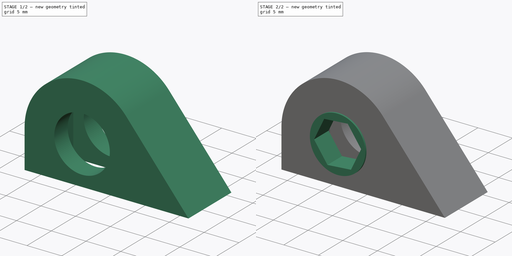
[diagram: build sequence overview — one tinted view per stage of 2, left to right]
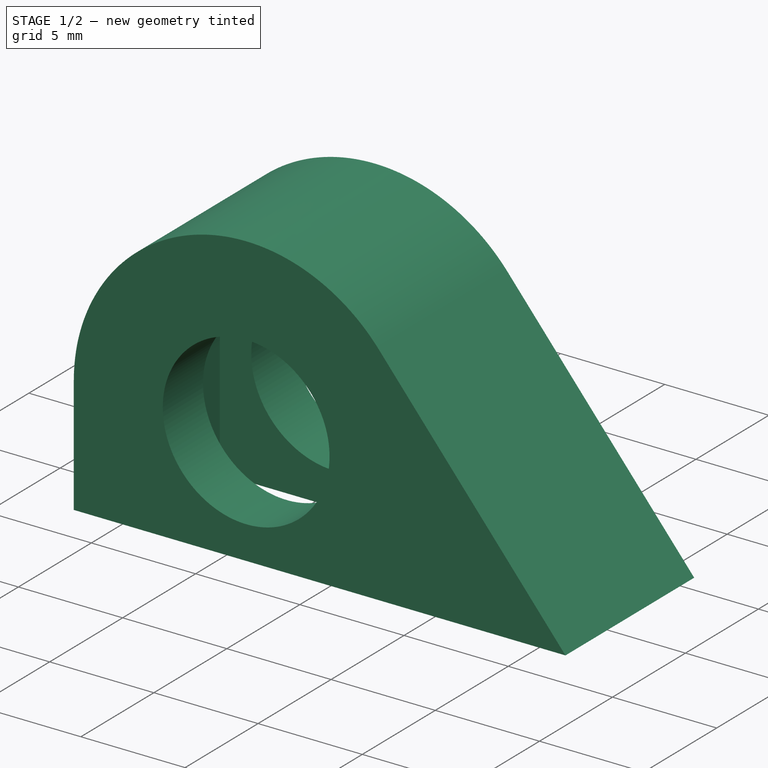
[diagram: stage 1 of 2 — iso view after this stage's code; geometry added in this stage tinted green]
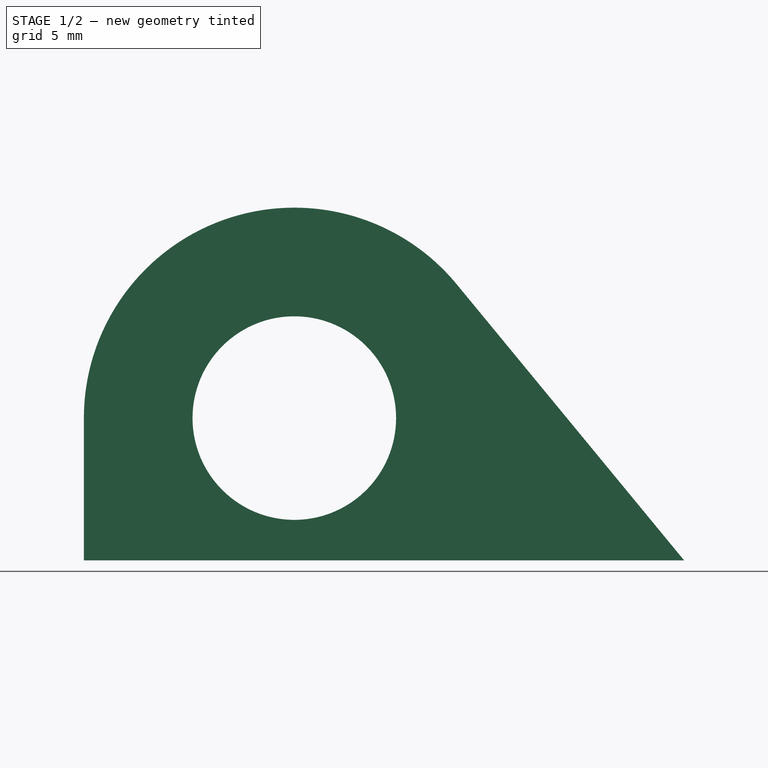
[diagram: stage 1 of 2 — front view after this stage's code; geometry added in this stage tinted green]
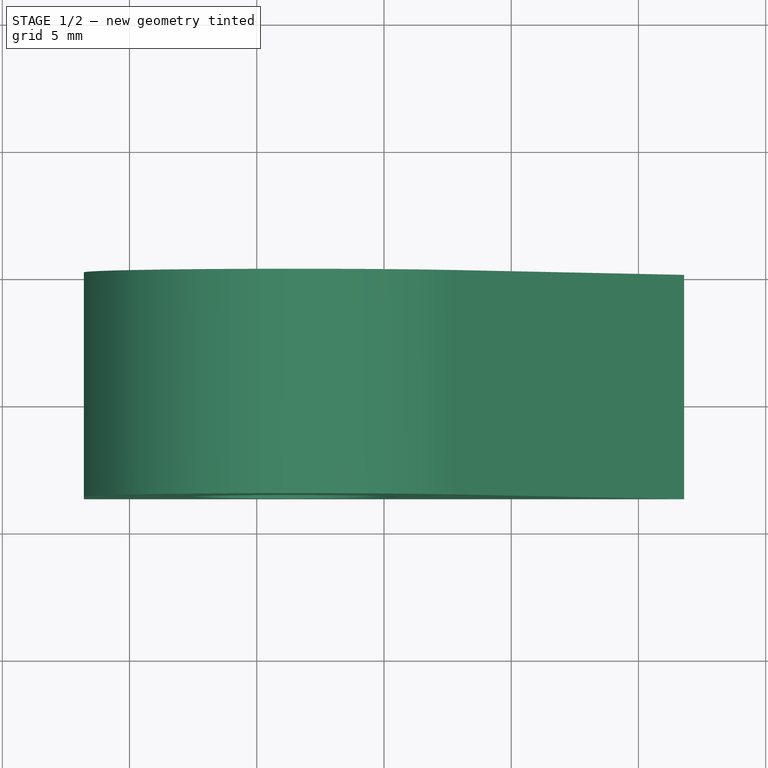
[diagram: stage 1 of 2 — top view after this stage's code; geometry added in this stage tinted green]
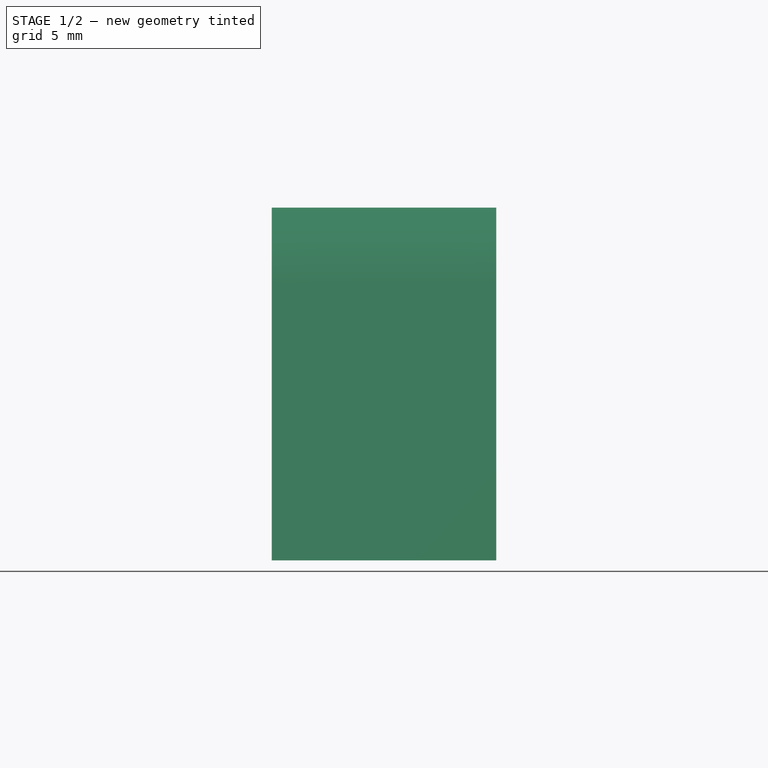
[diagram: stage 1 of 2 — right view after this stage's code; geometry added in this stage tinted green]
FCSTD DOCUMENT  (FreeCAD 0.16R4928 (Git))
Label: SujetaTuercas
License: All rights reserved
LicenseURL: http://en.wikipedia.org/wiki/All_rights_reserved
objects: Sketcher::SketchObject×2, Part::Feature×1, PartDesign::Pocket×1, PartDesign::Pad×1
note: 7 computed .brp shape members not serialized (recipe doc carries the construction recipe); baked Part::Feature solids carry a one-line shape summary decoded from their .brp

FEATURE [Part::Feature] Solid
  shape: bbox 23.59 x 8.82 x 13.86 mm, 3038 faces (baked)
FEATURE [Sketcher::SketchObject] Sketch
  ExternalGeometry = -> [Solid]
  Placement = pos=(0,-23.64,0) rot=(1,0,0;1.5708rad)
  Support = -> Solid [Face249]
  sketch-geometry (2):
    g0: Circle [constr] CenterX=-3.5248 CenterY=5.59035 CenterZ=0 NormalX=0 NormalY=0 NormalZ=1 Radius=1.764
    g1: Circle CenterX=-3.5248 CenterY=5.59035 CenterZ=0 NormalX=0 NormalY=0 NormalZ=1 Radius=4
  constraints (5):
    c: PointOnObject(g-4,g0)
    c: PointOnObject(g-3,g0)
    c: PointOnObject(g-5,g0)
    c: Coincident(g1,g0)
    c: Radius(g1) = 4
FEATURE [PartDesign::Pocket] Pocket
  Length = 5
  Sketch = -> Sketch
  Type = 1
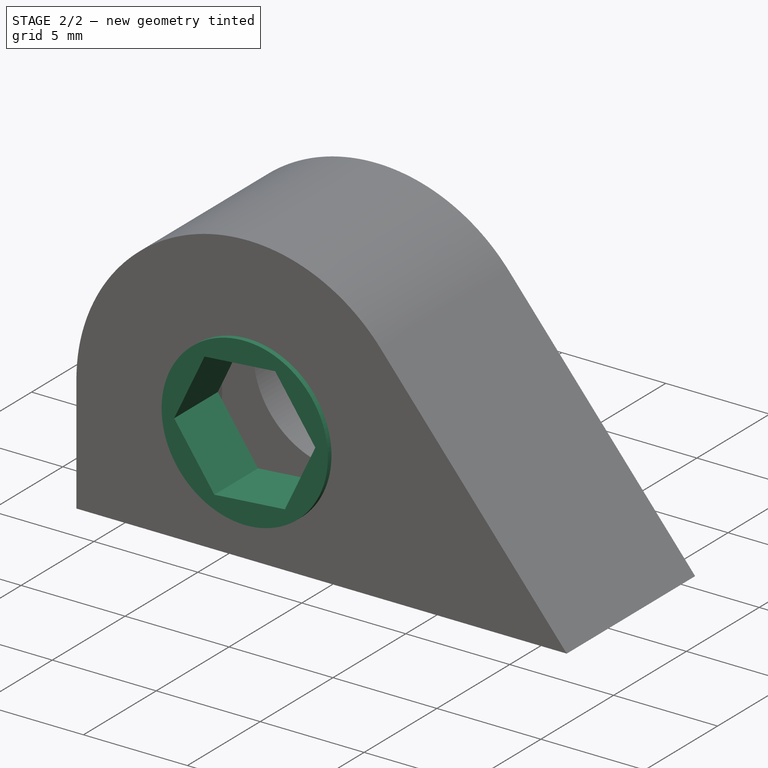
[diagram: stage 2 of 2 — iso view after this stage's code; geometry added in this stage tinted green]
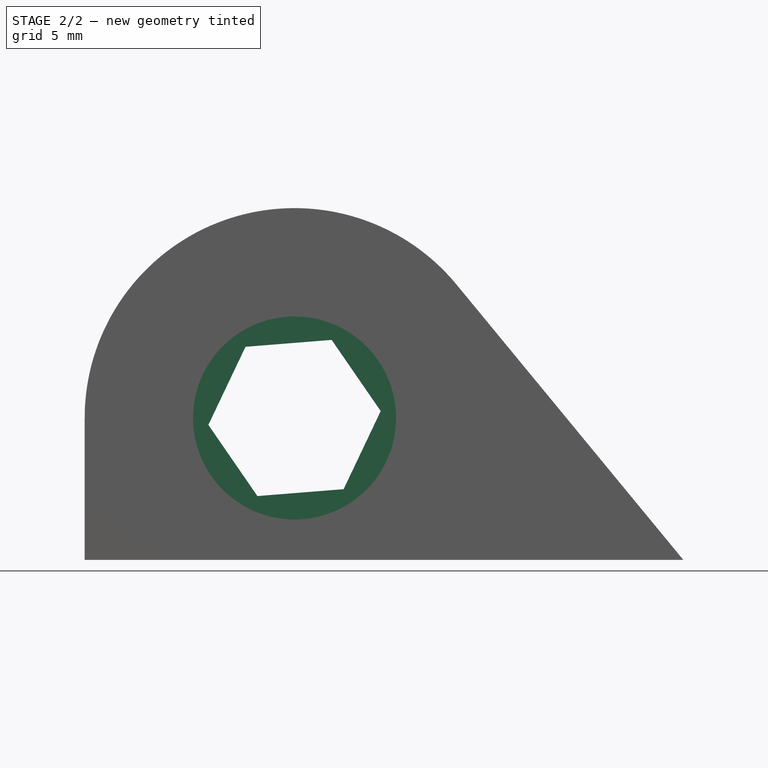
[diagram: stage 2 of 2 — front view after this stage's code; geometry added in this stage tinted green]
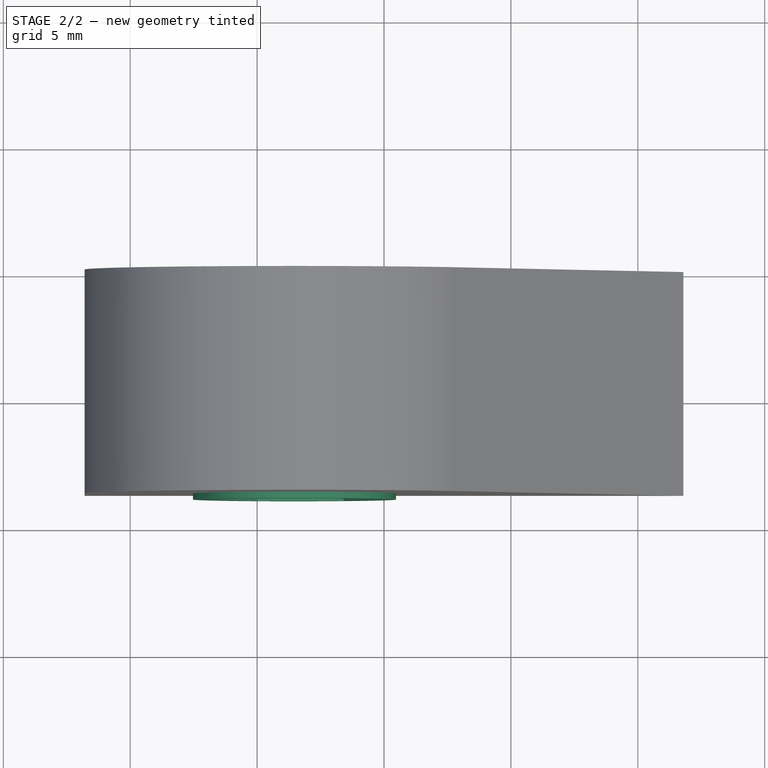
[diagram: stage 2 of 2 — top view after this stage's code; geometry added in this stage tinted green]
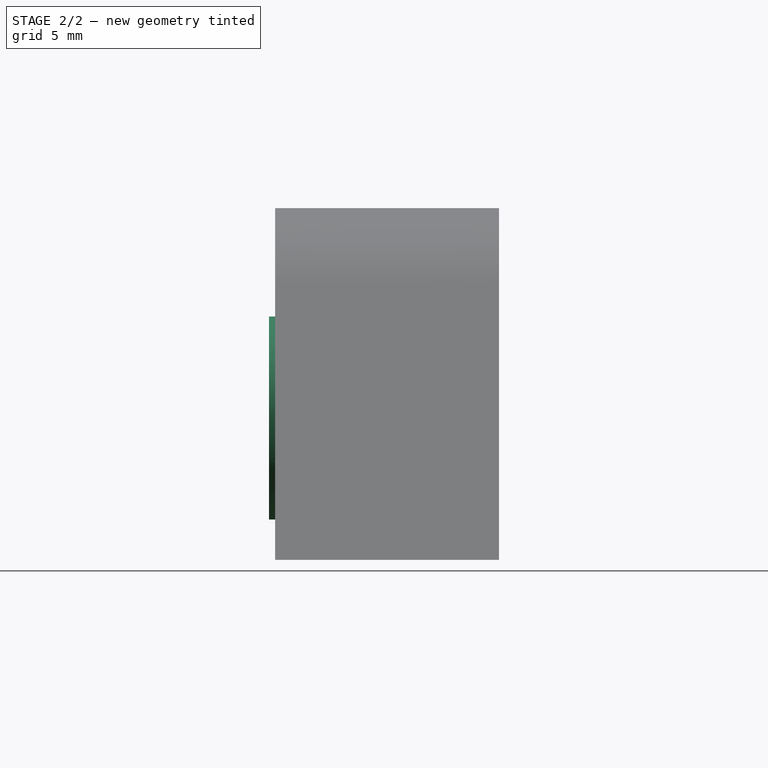
[diagram: stage 2 of 2 — right view after this stage's code; geometry added in this stage tinted green]
FEATURE [Sketcher::SketchObject] Sketch001
  ExternalGeometry = -> [Pocket]
  Placement = pos=(0,-20.8838,0) rot=(0,0.707107,0.707107;3.14159rad)
  Support = -> Pocket [Face149]
  sketch-geometry (8):
    g0: Circle CenterX=3.5248 CenterY=5.59035 CenterZ=0 NormalX=0 NormalY=0 NormalZ=1 Radius=4
    g1: LineSegment StartX=4.98746 StartY=2.51399 StartZ=0 EndX=6.92033 EndY=5.31887 EndZ=0
    g2: LineSegment StartX=6.92033 StartY=5.31887 StartZ=0 EndX=5.45767 EndY=8.39523 EndZ=0
    g3: LineSegment StartX=5.45767 StartY=8.39523 StartZ=0 EndX=2.06214 EndY=8.6667 EndZ=0
    g4: LineSegment StartX=2.06214 StartY=8.6667 StartZ=0 EndX=0.129267 EndY=5.86182 EndZ=0
    g5: LineSegment StartX=0.129267 StartY=5.86182 StartZ=0 EndX=1.59193 EndY=2.78547 EndZ=0
    g6: LineSegment StartX=1.59193 StartY=2.78547 StartZ=0 EndX=4.98746 EndY=2.51399 EndZ=0
    g7: Circle [constr] CenterX=3.5248 CenterY=5.59035 CenterZ=0 NormalX=0 NormalY=0 NormalZ=1 Radius=3.40637
  constraints (18):
    c: Coincident(g0,g-3)
    c: Equal(g0,g-3)
    c: Coincident(g1,g2)
    c: Coincident(g2,g3)
    c: Coincident(g3,g4)
    c: Coincident(g4,g5)
    c: Coincident(g5,g6)
    c: Coincident(g6,g1)
    c: Equal(g1, g2-g6) x5
    c: PointOnObject(g1,g7)
    c: PointOnObject(g2,g7)
    c: PointOnObject(g3,g7)
    c: PointOnObject(g4,g7)
    c: PointOnObject(g5,g7)
    c: PointOnObject(g6,g7)
    c: Coincident(g4,g0)
    c: Coincident(g0,g7)
    c: Distance(g3,g1) = 5.9
FEATURE [PartDesign::Pad] Pad
  Length = 3
  Length2 = 100
  Reversed = true
  Sketch = -> Sketch001
  Type = 0
  UpToFace = -> Pocket [Face1]
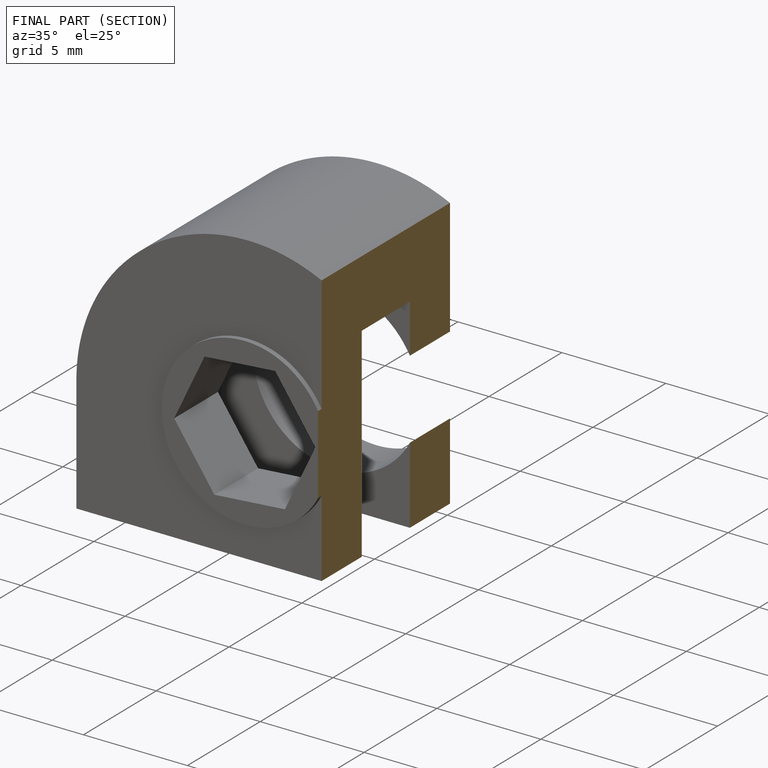
[diagram: finished part — half-section view (interior)]
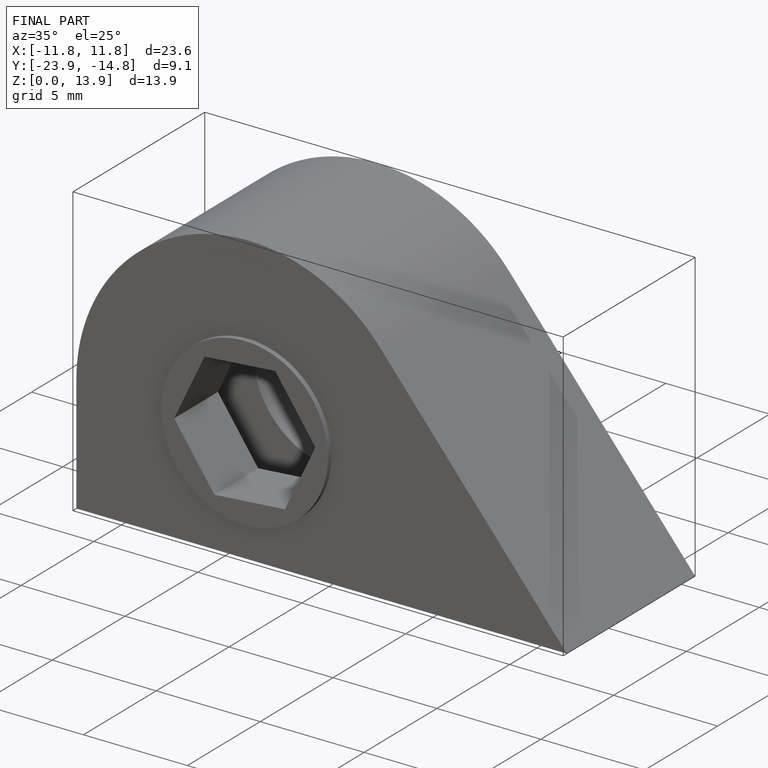
[diagram: finished part — iso view with bounding-box wireframe]
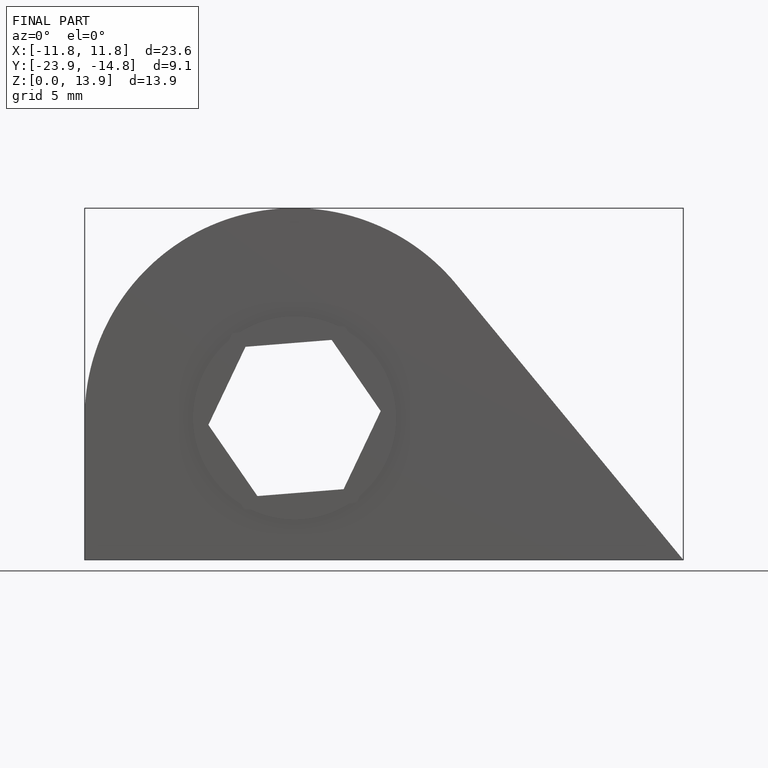
[diagram: finished part — front view with bounding-box wireframe]
